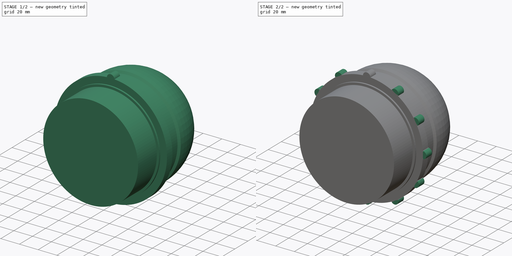
[diagram: build sequence overview — one tinted view per stage of 2, left to right]
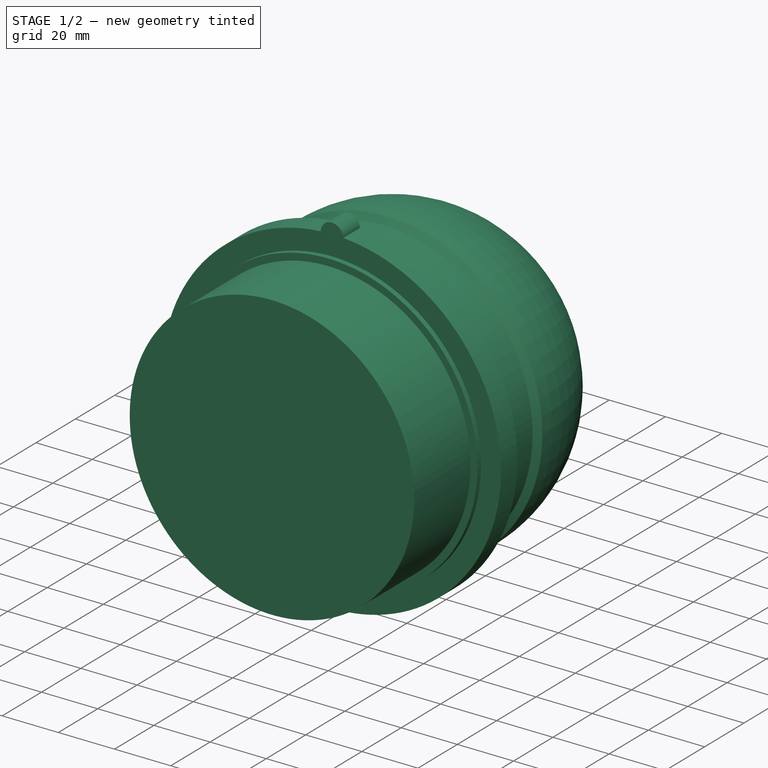
[diagram: stage 1 of 2 — iso view after this stage's code; geometry added in this stage tinted green]
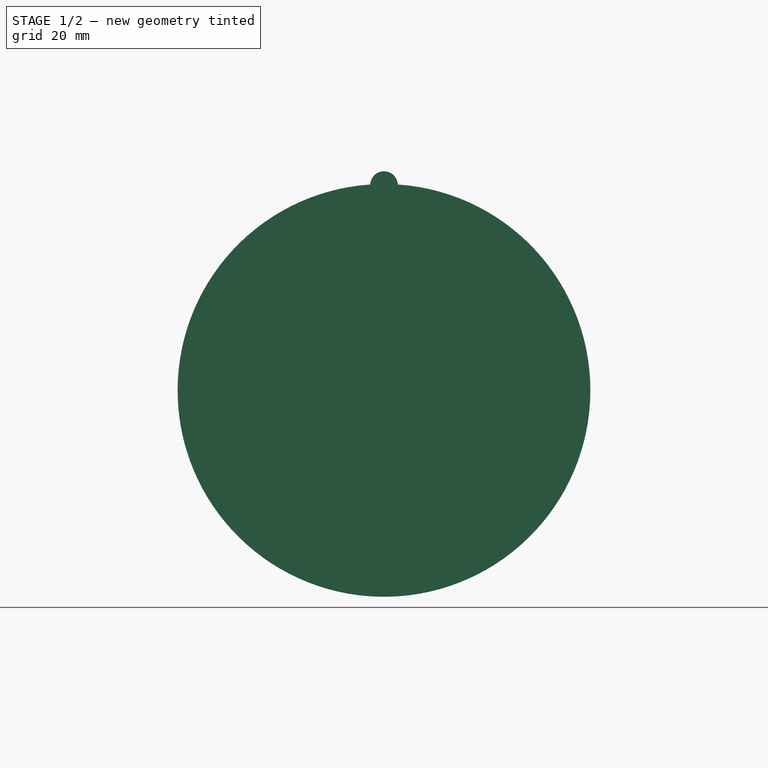
[diagram: stage 1 of 2 — front view after this stage's code; geometry added in this stage tinted green]
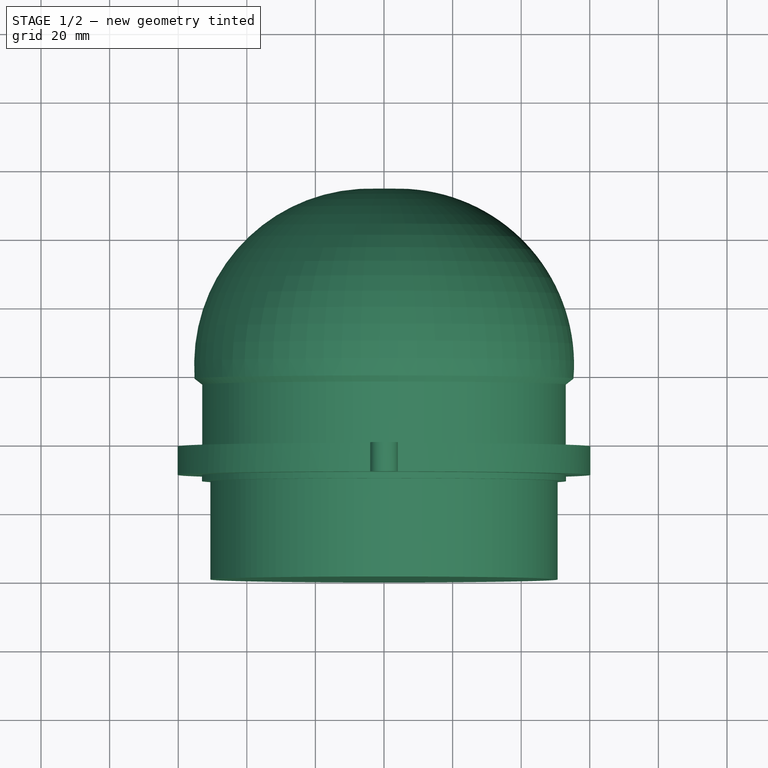
[diagram: stage 1 of 2 — top view after this stage's code; geometry added in this stage tinted green]
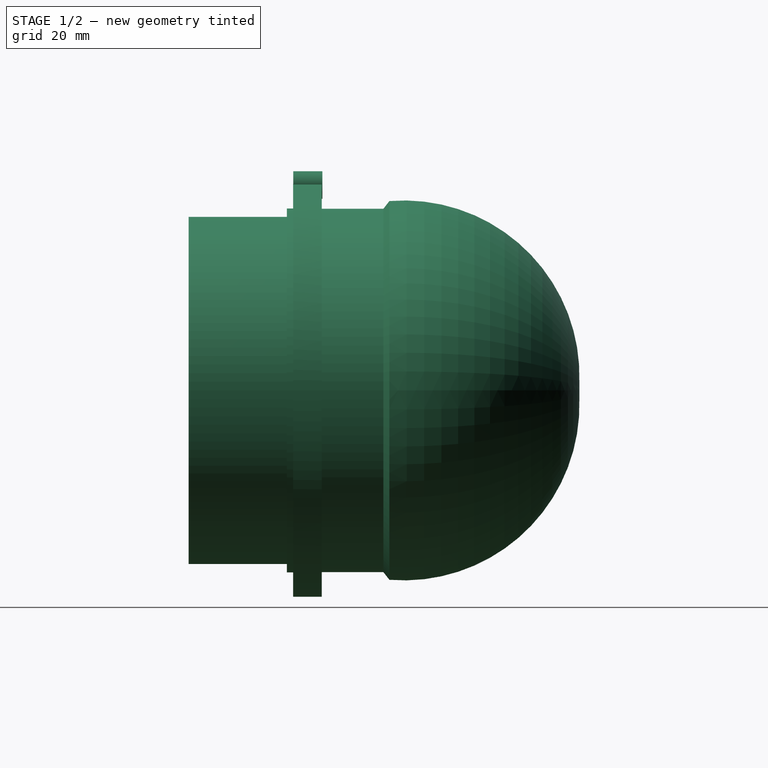
[diagram: stage 1 of 2 — right view after this stage's code; geometry added in this stage tinted green]
FCSTD DOCUMENT  (FreeCAD 0.21R33771 (Git))
Label: ex82
License: All rights reserved
LicenseURL: http://en.wikipedia.org/wiki/All_rights_reserved
objects: Sketcher::SketchObject×2, PartDesign::Revolution×1, PartDesign::Pad×1, PartDesign::PolarPattern×1, PartDesign::Body×1
note: 8 computed .brp shape members not serialized (recipe doc carries the construction recipe); baked Part::Feature solids carry a one-line shape summary decoded from their .brp

FEATURE [Sketcher::SketchObject] Sketch
  FullyConstrained = false
  MapMode = 5
  Support = -> [XY_Plane]
  sketch-geometry (13):
    g0: LineSegment StartX=55.2361 StartY=58.5518 StartZ=0 EndX=52.9977 EndY=56.8104 EndZ=0
    g1: LineSegment StartX=52.9977 StartY=56.8104 StartZ=0 EndX=52.9977 EndY=38.8234 EndZ=0
    g2: LineSegment StartX=52.9977 StartY=38.8234 StartZ=0 EndX=60.1705 EndY=38.8234 EndZ=0
    g3: LineSegment StartX=60.1705 StartY=38.8234 StartZ=0 EndX=60.1705 EndY=30.4921 EndZ=0
    g4: LineSegment StartX=60.1705 StartY=30.4921 StartZ=0 EndX=53.0575 EndY=30.4921 EndZ=0
    g5: LineSegment StartX=53.0575 StartY=30.4921 StartZ=0 EndX=53.0575 EndY=28.6631 EndZ=0
    g6: LineSegment StartX=53.0575 StartY=28.6631 StartZ=0 EndX=50.6188 EndY=28.6631 EndZ=0
    g7: LineSegment StartX=50.6188 StartY=28.6631 StartZ=0 EndX=50.6188 EndY=0 EndZ=0
    g8: LineSegment StartX=50.6188 StartY=0 StartZ=0 EndX=0 EndY=0 EndZ=0
    g9: LineSegment StartX=4.26e-14 StartY=0 StartZ=0 EndX=4.26e-14 EndY=58.5518 EndZ=0
    g10: GeomPoint X=4.26e-14 Y=113.788 Z=0
    g11: ArcOfCircle CenterX=4.17877 CenterY=62.7306 CenterZ=0 NormalX=0 NormalY=0 NormalZ=1 AngleXU=0 Radius=51.228 StartAngle=6.20152 EndAngle=7.93564
    g12: LineSegment StartX=4.26e-14 StartY=113.788 StartZ=0 EndX=4.26e-14 EndY=58.5518 EndZ=0
  constraints (22):
    c: Coincident(g1,g0)
    c: Vertical(g1)
    c: Coincident(g2,g1)
    c: Horizontal(g2)
    c: Coincident(g3,g2)
    c: Coincident(g4,g3)
    c: Coincident(g5,g4)
    c: Coincident(g6,g5)
    c: Horizontal(g6)
    c: PointOnObject(g7,g-1)
    c: Coincident(g8,g-1)
    c: Vertical(g9)
    c: Vertical(g7)
    c: Vertical(g5)
    c: Horizontal(g4)
    c: Vertical(g3)
    c: PointOnObject(g10,g-2)
    c: Coincident(g11,g10)
    c: Coincident(g12,g11)
    c: Coincident(g12,g9)
    c: Vertical(g12)
    c: Coincident(g8,g7)
FEATURE [PartDesign::Revolution] Revolution
  Angle = 360
  Axis = (0,1,0)
  Base = (0,0,0)
  Profile = -> Sketch
  ReferenceAxis = -> Sketch [V_Axis]
  Refine = true
  Reversed = true
FEATURE [Sketcher::SketchObject] Sketch001
  AttachmentOffset = pos=(0,0,-30.5) rot=(0,0,1;0rad)
  FullyConstrained = false
  MapMode = 5
  Placement = pos=(0,30.5,-6.8e-15) rot=(1,0,0;1.5708rad)
  Support = -> [XZ_Plane]
  sketch-geometry (1):
    g0: Circle CenterX=0 CenterY=59.8898 CenterZ=0 NormalX=0 NormalY=0 NormalZ=1 AngleXU=0 Radius=4.00761
  constraints (1):
    c: PointOnObject(g0,g-2)
FEATURE [PartDesign::Pad] Pad
  BaseFeature = -> Revolution
  Direction = (0,-1,2e-16)
  Length = 8.5
  Length2 = 10
  Profile = -> Sketch001
  ReferenceAxis = -> Sketch001 [N_Axis]
  Refine = true
  Reversed = true
  Type = 0
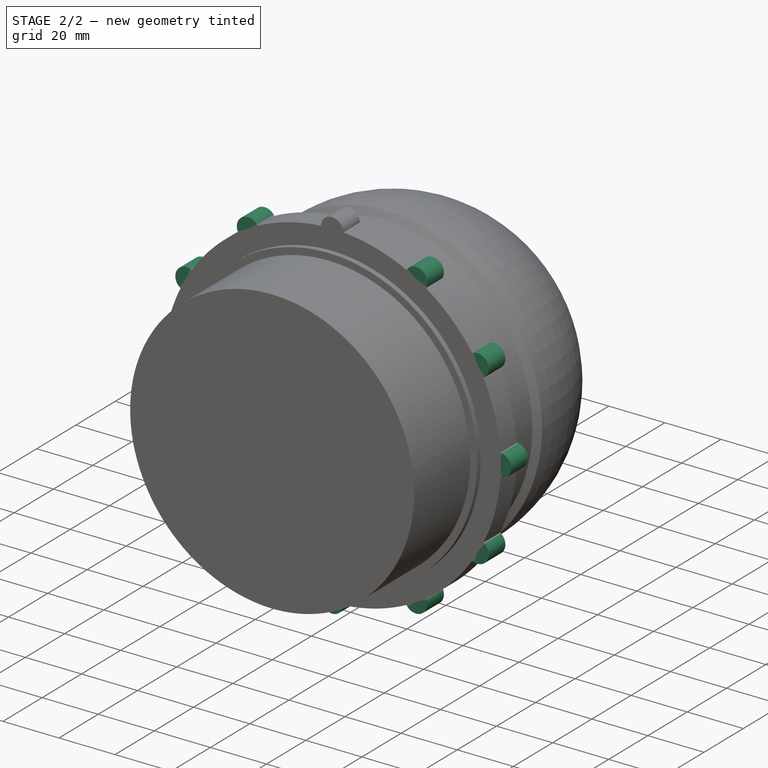
[diagram: stage 2 of 2 — iso view after this stage's code; geometry added in this stage tinted green]
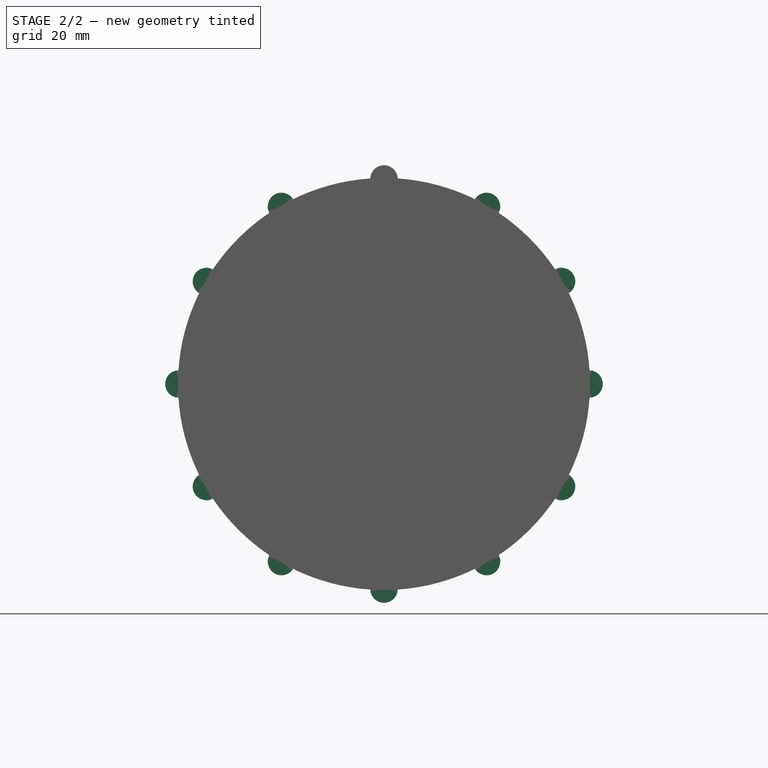
[diagram: stage 2 of 2 — front view after this stage's code; geometry added in this stage tinted green]
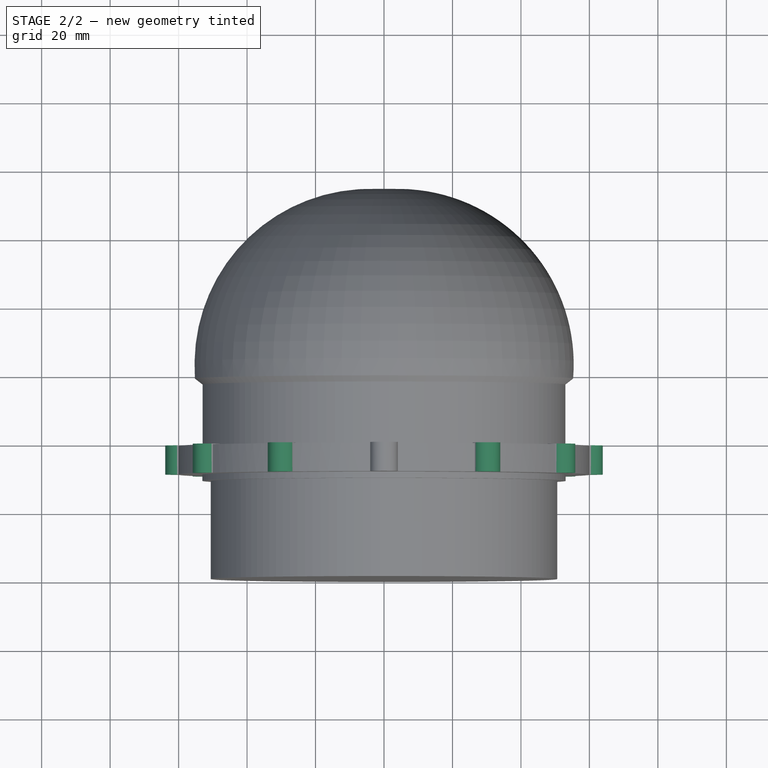
[diagram: stage 2 of 2 — top view after this stage's code; geometry added in this stage tinted green]
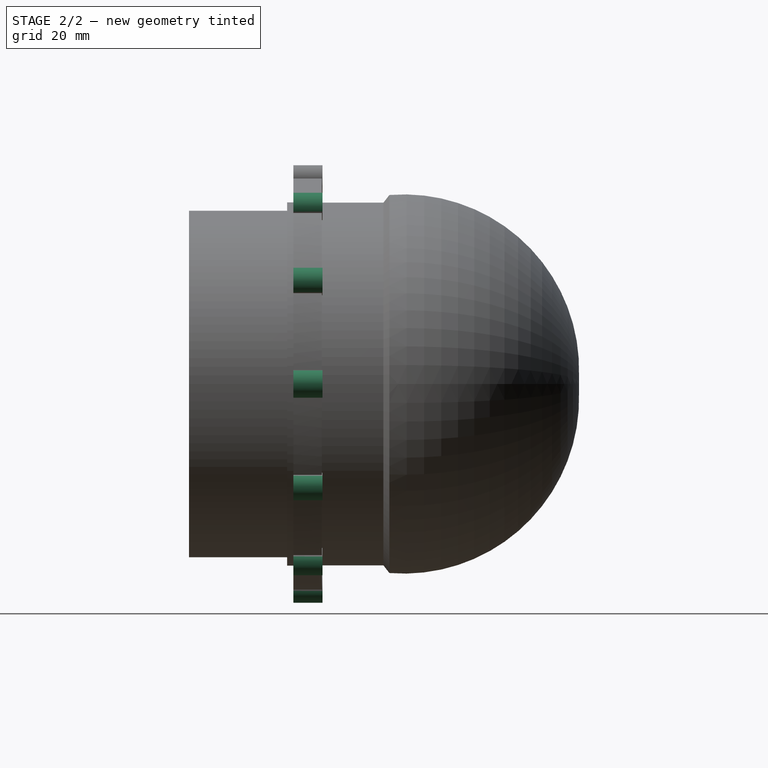
[diagram: stage 2 of 2 — right view after this stage's code; geometry added in this stage tinted green]
FEATURE [PartDesign::PolarPattern] PolarPattern
  Angle = 360
  Axis = -> Sketch001 [N_Axis]
  BaseFeature = -> Pad
  Occurrences = 12
  Originals = -> [Pad]
  Refine = true
FEATURE [PartDesign::Body] Body
  Group = -> [Sketch,Revolution,Sketch001,Pad,PolarPattern]
  Origin = -> Origin
  Tip = -> PolarPattern
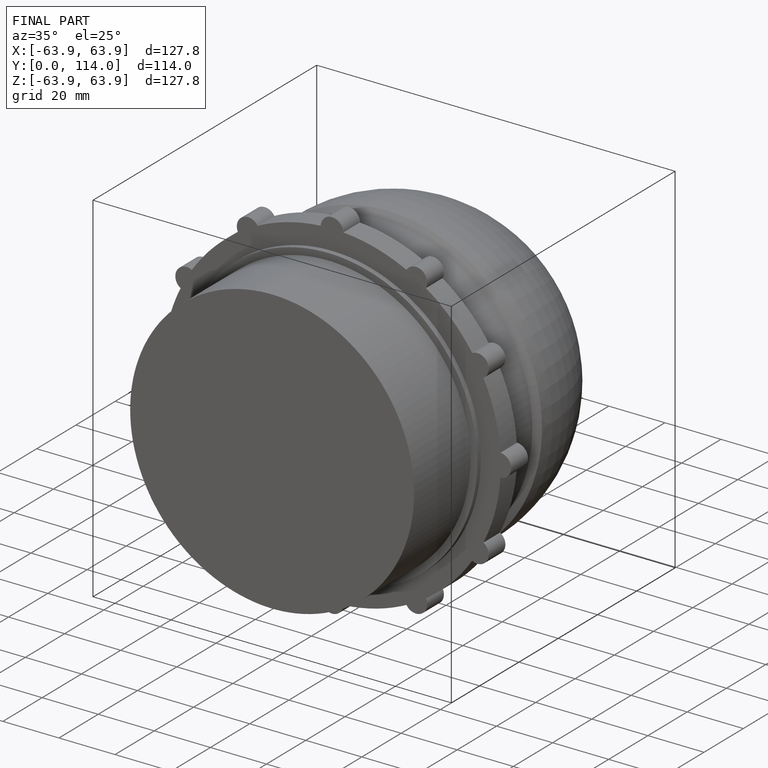
[diagram: finished part — iso view with bounding-box wireframe]
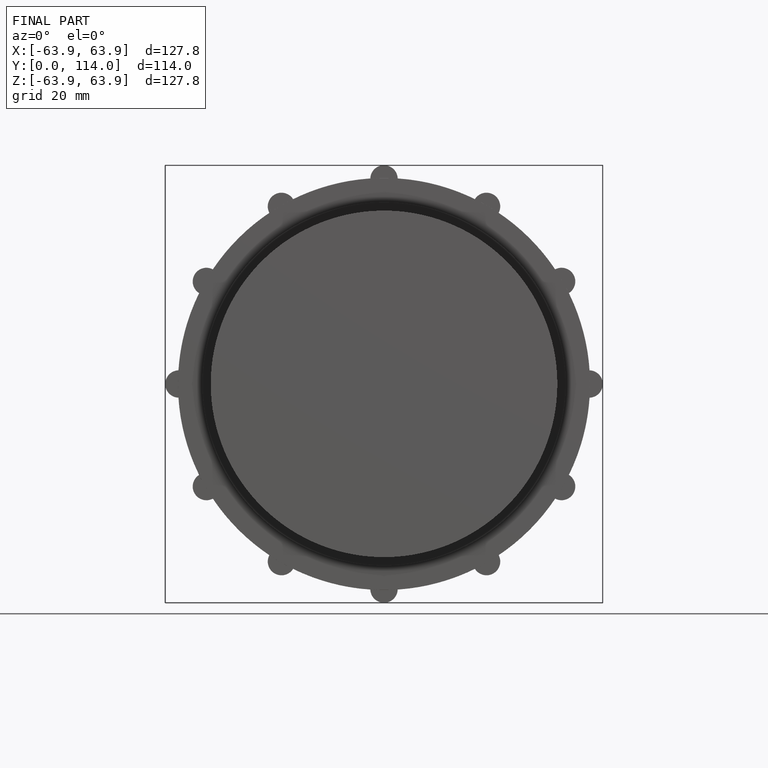
[diagram: finished part — front view with bounding-box wireframe]
